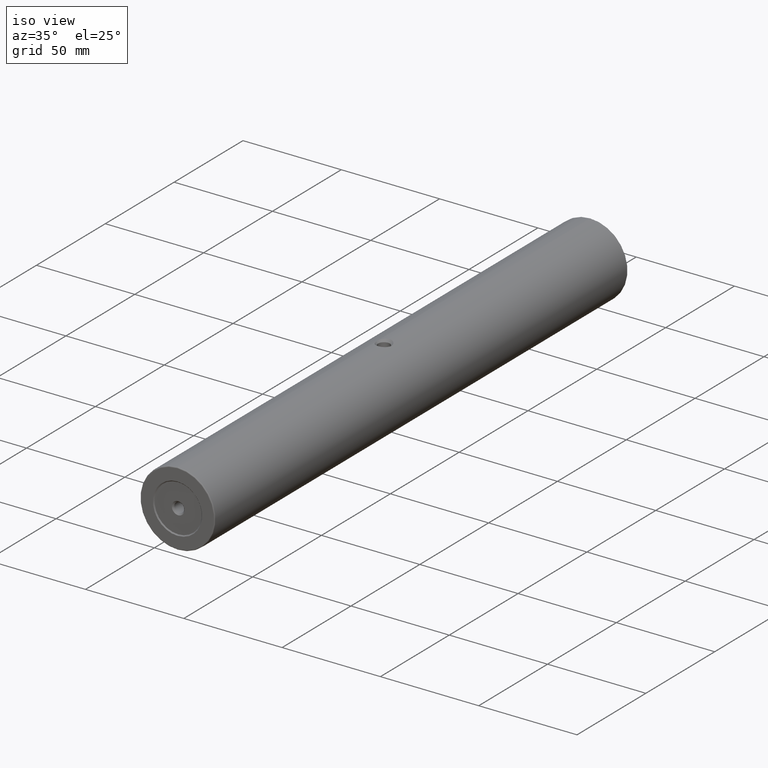
[diagram: clean part render]
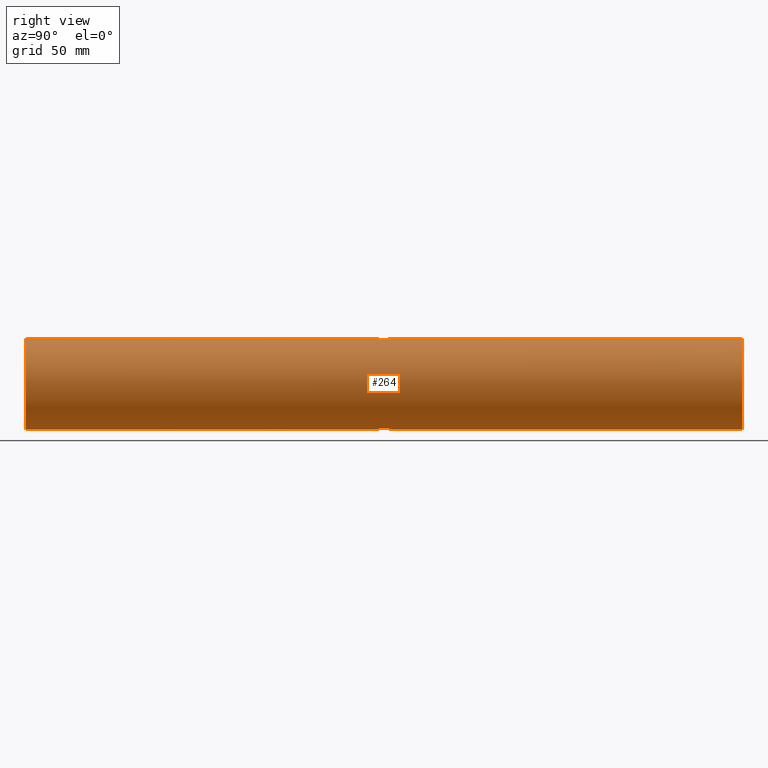
[diagram: tour spotlight — one face highlighted and labeled with its STEP entity id]
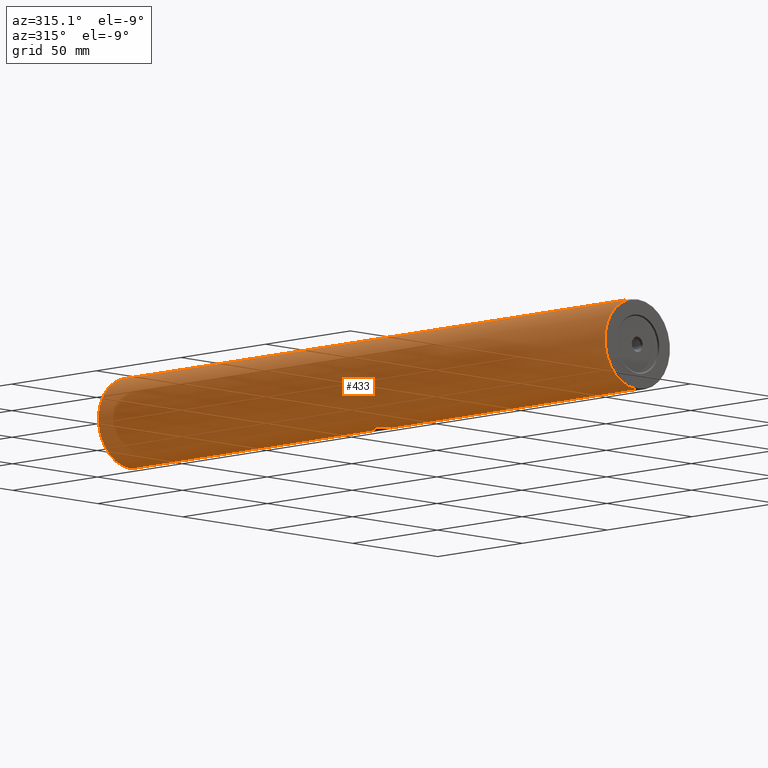
[diagram: tour spotlight — one face highlighted and labeled with its STEP entity id]
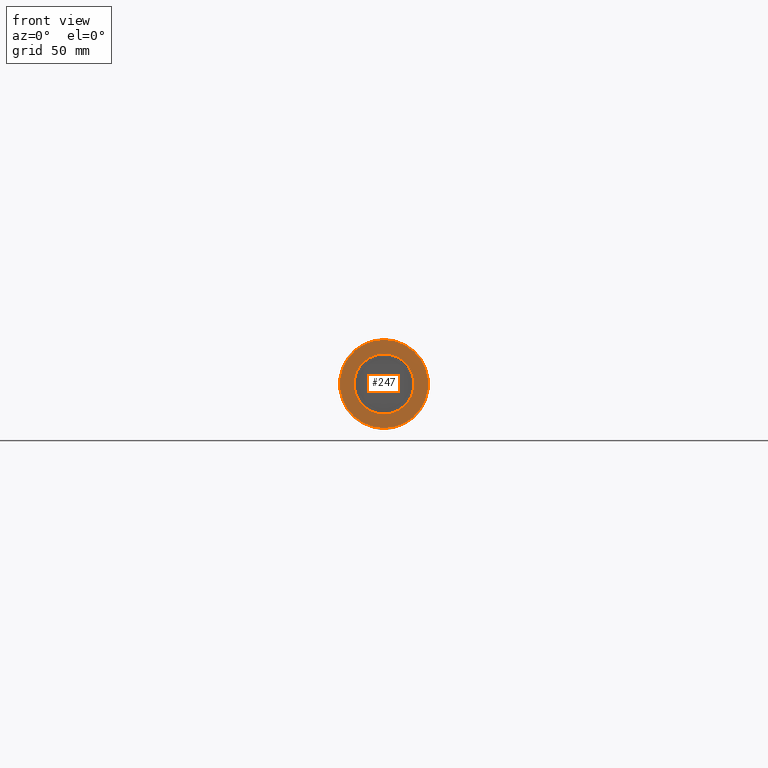
[diagram: tour spotlight — one face highlighted and labeled with its STEP entity id]
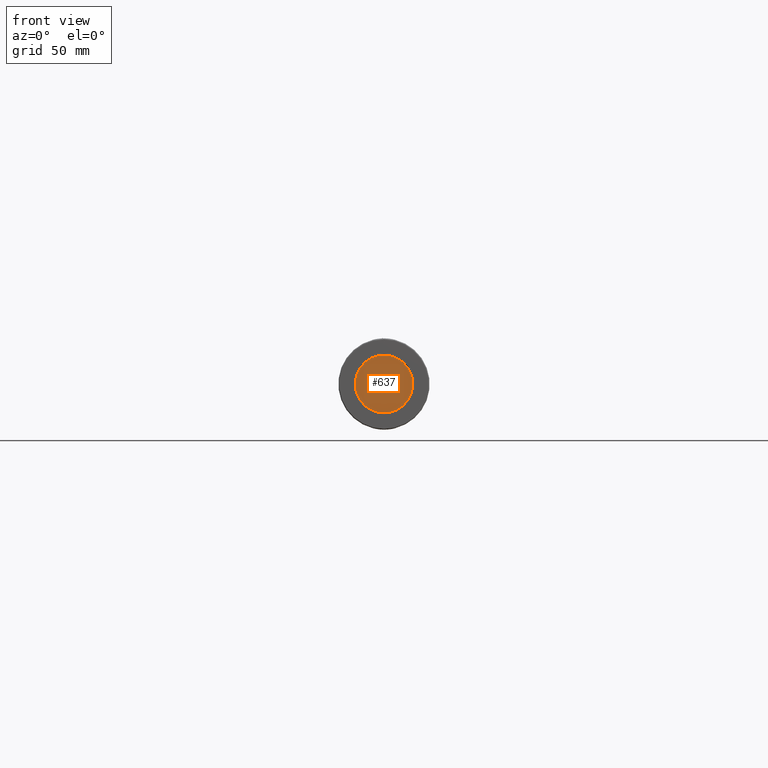
[diagram: tour spotlight — one face highlighted and labeled with its STEP entity id]
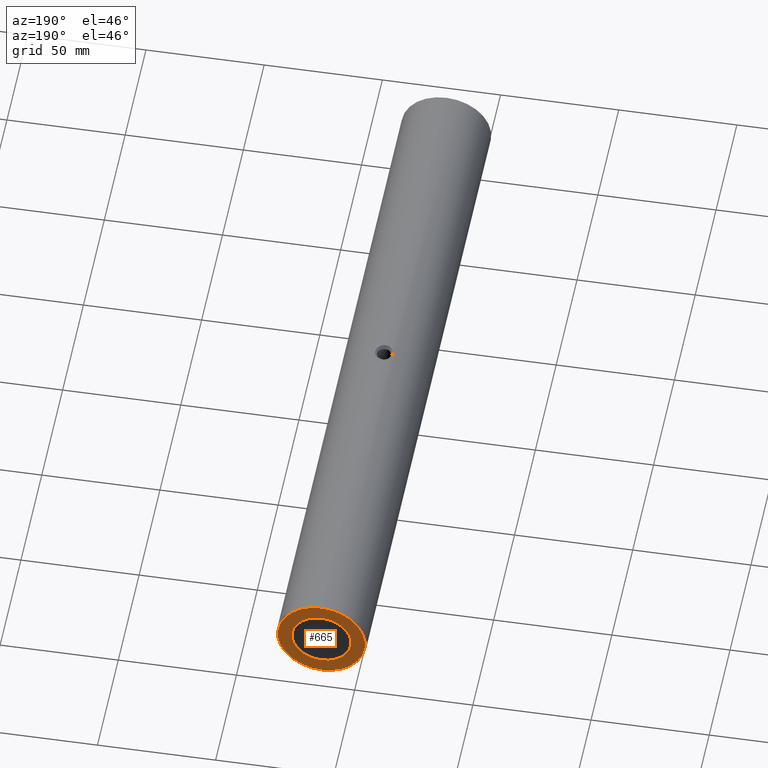
[diagram: tour spotlight — one face highlighted and labeled with its STEP entity id]
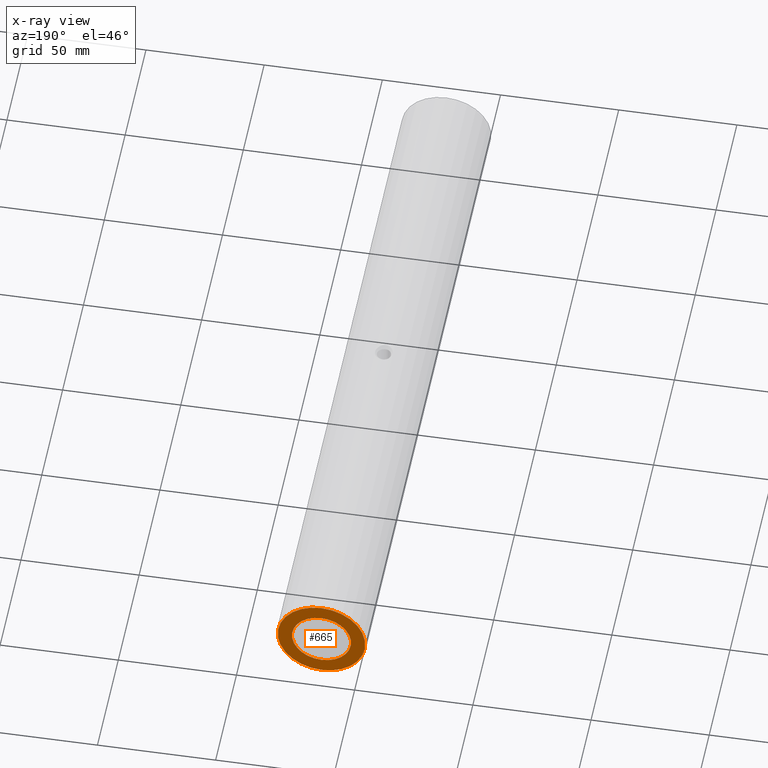
[diagram: x-ray of the same camera — body ghosted, this tour face saturated]
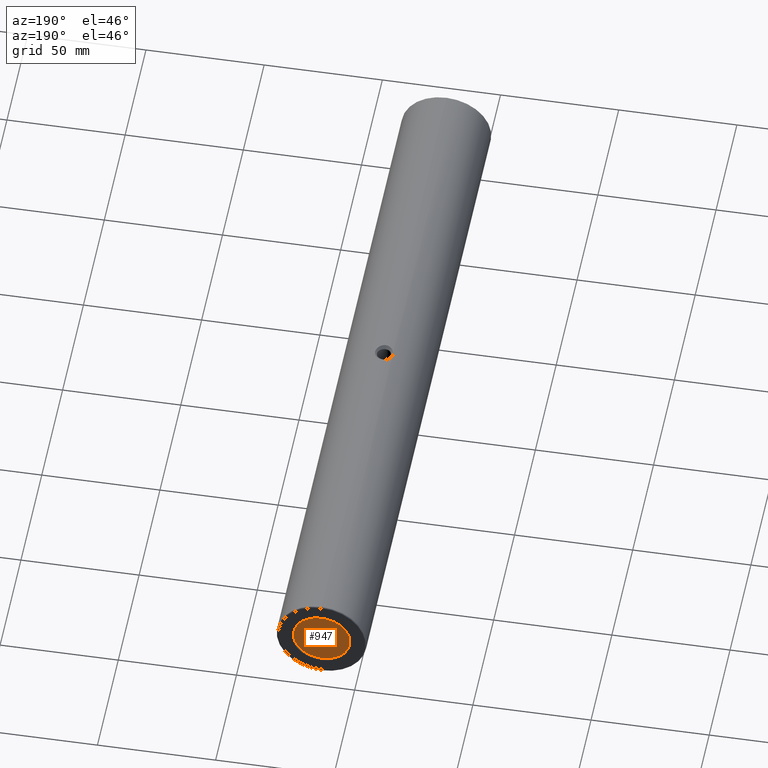
[diagram: tour spotlight — one face highlighted and labeled with its STEP entity id]
A machine part: a face-by-face anatomy tour. The part has 28 B-rep faces; the first image is the clean iso view, then the 6 largest visible faces are spotlighted one at a time (largest first), each with its STEP entity span.

Face 1 — right view, entity #264. In plain terms, the highlighted cylindrical surface (partial cylindrical patch) has radius 19 mm, axis along (-0, -1, -0).
Definition (entity closure, byte-faithful):
#1 = CARTESIAN_POINT ( 'NONE',  ( -82.83102515499484753, -0.9863390833895698817, 418.8494842750069438 ) ) ;
#3 = ORIENTED_EDGE ( 'NONE', *, *, #276, .T. ) ;
#11 = VERTEX_POINT ( 'NONE', #649 ) ;
#15 = CARTESIAN_POINT ( 'NONE',  ( -85.22679983354142053, 145.2386600083257235, 381.0000000000000000 ) ) ;
#42 = CARTESIAN_POINT ( 'NONE',  ( -81.52508446630257311, -5.300719478809650553, 381.3640301049963455 ) ) ;
#44 = CARTESIAN_POINT ( 'NONE',  ( -81.88059113652985843, -6.288202399889226690, 418.7034922552546163 ) ) ;
#51 = DIRECTION ( 'NONE',  ( 0.0000000000000000000, 0.0000000000000000000, 1.000000000000000000 ) ) ;
#68 = CARTESIAN_POINT ( 'NONE',  ( -84.18753268678747759, -0.2111030241652349926, 418.9732691674435046 ) ) ;
#82 = VERTEX_POINT ( 'NONE', #280 ) ;
#89 = CARTESIAN_POINT ( 'NONE',  ( -85.22679983354142053, -0.06133999167429866894, 381.0000000000000000 ) ) ;
#94 = DIRECTION ( 'NONE',  ( -0.0000000000000000000, -1.000000000000000000, -0.0000000000000000000 ) ) ;
#97 = CARTESIAN_POINT ( 'NONE',  ( -84.18753268678749180, -0.2111030241652349648, 381.0267308325566091 ) ) ;
#101 = ORIENTED_EDGE ( 'NONE', *, *, #696, .T. ) ;
#102 = AXIS2_PLACEMENT_3D ( 'NONE', #757, #584, #740 ) ;
#131 = CARTESIAN_POINT ( 'NONE',  ( -83.93808702169893365, -8.222923423920713404, 381.0422776972831116 ) ) ;
#144 = CARTESIAN_POINT ( 'NONE',  ( -81.41341497436532393, -3.997586484548957486, 418.6133848591761648 ) ) ;
#155 = ORIENTED_EDGE ( 'NONE', *, *, #847, .F. ) ;
#157 = CARTESIAN_POINT ( 'NONE',  ( -81.41341497436532393, -4.261339991674279126, 418.6133848591761648 ) ) ;
#161 = EDGE_CURVE ( 'NONE', #721, #796, #699, .T. ) ;
#167 = VECTOR ( 'NONE', #620, 1000.000000000000000 ) ;
#173 = ORIENTED_EDGE ( 'NONE', *, *, #555, .F. ) ;
#176 = LINE ( 'NONE', #595, #294 ) ;
#196 = B_SPLINE_CURVE_WITH_KNOTS ( 'NONE', 3,
 ( #398, #705, #380, #687, #300, #614, #725, #408, #425, #635, #569, #495, #794, #656, #97, #887, #501, #573 ),
 .UNSPECIFIED., .F., .F.,
 ( 4, 2, 2, 2, 2, 2, 2, 2, 4 ),
 ( 0.01002925114519557549, 0.01081737704504791807, 0.01160550294490026065, 0.01239362884475260496, 0.01318175474460494753, 0.01396988064445729011, 0.01475800654430963268, 0.01554613244416197526, 0.01633425834401431784 ),
 .UNSPECIFIED. ) ;
#200 = CARTESIAN_POINT ( 'NONE',  ( -81.43586367851925445, -4.785232307264686291, 381.3819744963091694 ) ) ;
#201 = CARTESIAN_POINT ( 'NONE',  ( -82.29671814351611658, -6.957786961682561611, 418.7735023986901979 ) ) ;
#212 = CARTESIAN_POINT ( 'NONE',  ( -81.88059113652985843, -6.288202399889226690, 381.2965077447454973 ) ) ;
#220 = CARTESIAN_POINT ( 'NONE',  ( -83.24438980785724596, -7.856924346119599889, 381.1025380199827737 ) ) ;
#221 = CARTESIAN_POINT ( 'NONE',  ( -81.59285872774556481, -5.558021363143371474, 418.6494685149854149 ) ) ;
#243 = VERTEX_POINT ( 'NONE', #849 ) ;
#253 = VECTOR ( 'NONE', #94, 1000.000000000000000 ) ;
#254 = CARTESIAN_POINT ( 'NONE',  ( -85.22679983354142053, 145.7386600083257235, 419.0000000000000568 ) ) ;
#264 = ADVANCED_FACE ( 'NONE', ( #938 ), #540, .T. ) ;
#265 = LINE ( 'NONE', #254, #253 ) ;
#274 = CARTESIAN_POINT ( 'NONE',  ( -81.88335953815429491, -2.229144387579318209, 418.7039841074685000 ) ) ;
#276 = EDGE_CURVE ( 'NONE', #330, #804, #558, .T. ) ;
#279 = CARTESIAN_POINT ( 'NONE',  ( -82.82757549099136440, -7.533607839044134558, 418.8490779973516851 ) ) ;
#280 = CARTESIAN_POINT ( 'NONE',  ( -85.22679983354142053, -153.7613399916742765, 419.0000000000000568 ) ) ;
#286 = CARTESIAN_POINT ( 'NONE',  ( -81.43639937781144056, -3.732814026306843225, 418.6181352063767918 ) ) ;
#289 = CARTESIAN_POINT ( 'NONE',  ( -84.69972560880194123, -8.430702186240790041, 381.0055983805024198 ) ) ;
#291 = CARTESIAN_POINT ( 'NONE',  ( -83.24438980785724596, -7.856924346119599889, 418.8974619800173400 ) ) ;
#294 = VECTOR ( 'NONE', #915, 1000.000000000000000 ) ;
#295 = CARTESIAN_POINT ( 'NONE',  ( -81.77082803723338600, -6.051458313143355028, 381.3167330802414767 ) ) ;
#300 = CARTESIAN_POINT ( 'NONE',  ( -81.59279953389886941, -2.964568543362572584, 381.3505402671659681 ) ) ;
#301 = CIRCLE ( 'NONE', #386, 19.00000000000001776 ) ;
#307 = CARTESIAN_POINT ( 'NONE',  ( -85.22679983354142053, -0.06133999167429866894, 419.0000000000000568 ) ) ;
#310 = EDGE_CURVE ( 'NONE', #11, #82, #265, .T. ) ;
#314 = VERTEX_POINT ( 'NONE', #888 ) ;
#330 = VERTEX_POINT ( 'NONE', #580 ) ;
#333 = CIRCLE ( 'NONE', #102, 19.00000000000001776 ) ;
#358 = CARTESIAN_POINT ( 'NONE',  ( -84.96243902164792416, -8.461339991674275751, 419.0000000000001137 ) ) ;
#363 = CARTESIAN_POINT ( 'NONE',  ( -82.63814515825626472, -7.352595677616392322, 381.1763808475635642 ) ) ;
#364 = CARTESIAN_POINT ( 'NONE',  ( -85.22679983354142053, -153.7613399916742765, 400.0000000000000000 ) ) ;
#369 = CARTESIAN_POINT ( 'NONE',  ( -84.96243902164792416, -8.461339991674275751, 381.0000000000000568 ) ) ;
#371 = CARTESIAN_POINT ( 'NONE',  ( -81.41341497436532393, -4.524701080299160516, 418.6133848591761648 ) ) ;
#380 = CARTESIAN_POINT ( 'NONE',  ( -81.43639937781146898, -3.732814026306841892, 381.3818647936232082 ) ) ;
#386 = AXIS2_PLACEMENT_3D ( 'NONE', #364, #459, #51 ) ;
#395 = ORIENTED_EDGE ( 'NONE', *, *, #508, .F. ) ;
#398 = CARTESIAN_POINT ( 'NONE',  ( -81.41341497436532393, -4.261339991674277350, 381.3866151408238920 ) ) ;
#399 = CARTESIAN_POINT ( 'NONE',  ( -85.22679983354142053, 145.7386600083257235, 381.0000000000000000 ) ) ;
#401 = CARTESIAN_POINT ( 'NONE',  ( -83.94119362236200743, -0.2983445582111095007, 418.9579599544148323 ) ) ;
#408 = CARTESIAN_POINT ( 'NONE',  ( -82.14497683168241338, -1.778754477084883101, 381.2511338613114162 ) ) ;
#425 = CARTESIAN_POINT ( 'NONE',  ( -82.29571650229409840, -1.565921010254241796, 381.2266365370629160 ) ) ;
#432 = ORIENTED_EDGE ( 'NONE', *, *, #310, .T. ) ;
#434 = CARTESIAN_POINT ( 'NONE',  ( -82.29671814351611658, -6.957786961682561611, 381.2264976013096884 ) ) ;
#439 = VECTOR ( 'NONE', #787, 1000.000000000000000 ) ;
#443 = CARTESIAN_POINT ( 'NONE',  ( -82.14309753980985818, -6.741247472261910012, 381.2514396459365571 ) ) ;
#446 = EDGE_CURVE ( 'NONE', #82, #243, #301, .T. ) ;
#449 = CARTESIAN_POINT ( 'NONE',  ( -81.41341497436532393, -4.524701080299158740, 381.3866151408239489 ) ) ;
#450 = CARTESIAN_POINT ( 'NONE',  ( -82.14309753980985818, -6.741247472261910012, 418.7485603540634429 ) ) ;
#459 = DIRECTION ( 'NONE',  ( 0.0000000000000000000, 1.000000000000000000, 0.0000000000000000000 ) ) ;
#472 = CARTESIAN_POINT ( 'NONE',  ( -81.41341497436532393, -4.261339991674277350, 381.3866151408238920 ) ) ;
#479 = CARTESIAN_POINT ( 'NONE',  ( -85.22679983354142053, 145.7386600083257235, 400.0000000000000000 ) ) ;
#480 = EDGE_CURVE ( 'NONE', #721, #330, #333, .T. ) ;
#482 = CARTESIAN_POINT ( 'NONE',  ( -83.24199987212080032, -0.6676668308104377614, 418.8971787009924697 ) ) ;
#486 = CARTESIAN_POINT ( 'NONE',  ( -85.22679983354142053, 145.7386600083257235, 419.0000000000000568 ) ) ;
#493 = ORIENTED_EDGE ( 'NONE', *, *, #859, .T. ) ;
#495 = CARTESIAN_POINT ( 'NONE',  ( -83.24199987212081453, -0.6676668308104372063, 381.1028212990075872 ) ) ;
#501 = CARTESIAN_POINT ( 'NONE',  ( -84.96393248785444996, -0.06133999167429707300, 381.0000000000000000 ) ) ;
#508 = EDGE_CURVE ( 'NONE', #11, #611, #819, .T. ) ;
#522 = CARTESIAN_POINT ( 'NONE',  ( -84.69972560880194123, -8.430702186240790041, 418.9944016194976939 ) ) ;
#539 = CARTESIAN_POINT ( 'NONE',  ( -83.46511704992533964, -0.5280370949836369343, 418.9196591600729107 ) ) ;
#540 = CYLINDRICAL_SURFACE ( 'NONE', #737, 19.00000000000001776 ) ;
#555 = EDGE_CURVE ( 'NONE', #611, #804, #1004, .T. ) ;
#558 = LINE ( 'NONE', #486, #439 ) ;
#569 = CARTESIAN_POINT ( 'NONE',  ( -82.83102515499486174, -0.9863390833895689935, 381.1505157249931699 ) ) ;
#572 = VERTEX_POINT ( 'NONE', #472 ) ;
#573 = CARTESIAN_POINT ( 'NONE',  ( -85.22679983354142053, -0.06133999167429866894, 381.0000000000000000 ) ) ;
#580 = CARTESIAN_POINT ( 'NONE',  ( -85.22679983354142053, 145.2386600083257235, 419.0000000000000568 ) ) ;
#584 = DIRECTION ( 'NONE',  ( -0.0000000000000000000, -1.000000000000000000, -0.0000000000000000000 ) ) ;
#595 = CARTESIAN_POINT ( 'NONE',  ( -85.22679983354142053, 145.7386600083257235, 381.0000000000000000 ) ) ;
#596 = CARTESIAN_POINT ( 'NONE',  ( -84.18986350246656514, -8.312315706571794749, 418.9733988301109093 ) ) ;
#602 = CARTESIAN_POINT ( 'NONE',  ( -81.41341497436532393, -4.261339991674277350, 381.3866151408238920 ) ) ;
#603 = CARTESIAN_POINT ( 'NONE',  ( -82.63814515825626472, -7.352595677616392322, 418.8236191524364926 ) ) ;
#611 = VERTEX_POINT ( 'NONE', #157 ) ;
#614 = CARTESIAN_POINT ( 'NONE',  ( -81.77187972696631846, -2.468561370532884602, 381.3165358254529451 ) ) ;
#620 = DIRECTION ( 'NONE',  ( -0.0000000000000000000, -1.000000000000000000, -0.0000000000000000000 ) ) ;
#635 = CARTESIAN_POINT ( 'NONE',  ( -82.64087668775829343, -1.167056617506569971, 381.1759880288403792 ) ) ;
#649 = CARTESIAN_POINT ( 'NONE',  ( -85.22679983354142053, -8.461339991674268646, 419.0000000000000568 ) ) ;
#656 = CARTESIAN_POINT ( 'NONE',  ( -83.94119362236200743, -0.2983445582111096117, 381.0420400455853382 ) ) ;
#662 = CARTESIAN_POINT ( 'NONE',  ( -85.22679983354142053, -8.461339991674268646, 381.0000000000000000 ) ) ;
#663 = CARTESIAN_POINT ( 'NONE',  ( -81.52612773688036896, -3.217498801581725854, 418.6361777253471814 ) ) ;
#674 = CARTESIAN_POINT ( 'NONE',  ( -81.77082803723338600, -6.051458313143361245, 418.6832669197586370 ) ) ;
#681 = CARTESIAN_POINT ( 'NONE',  ( -84.18986350246656514, -8.312315706571794749, 381.0266011698889201 ) ) ;
#683 = CARTESIAN_POINT ( 'NONE',  ( -83.46626106639050136, -7.995107640163255702, 418.9197388689088370 ) ) ;
#686 = EDGE_LOOP ( 'NONE', ( #944, #3, #173, #395, #432, #860, #155, #493, #101, #896 ) ) ;
#687 = CARTESIAN_POINT ( 'NONE',  ( -81.52612773688034054, -3.217498801581724077, 381.3638222746528754 ) ) ;
#696 = EDGE_CURVE ( 'NONE', #572, #796, #196, .T. ) ;
#699 = LINE ( 'NONE', #399, #167 ) ;
#705 = CARTESIAN_POINT ( 'NONE',  ( -81.41341497436533814, -3.997586484548954822, 381.3866151408237783 ) ) ;
#721 = VERTEX_POINT ( 'NONE', #15 ) ;
#725 = CARTESIAN_POINT ( 'NONE',  ( -81.88335953815429491, -2.229144387579305775, 381.2960158925316705 ) ) ;
#737 = AXIS2_PLACEMENT_3D ( 'NONE', #479, #1005, #776 ) ;
#740 = DIRECTION ( 'NONE',  ( 0.0000000000000000000, 0.0000000000000000000, 1.000000000000000000 ) ) ;
#745 = CARTESIAN_POINT ( 'NONE',  ( -82.14497683168238495, -1.778754477084894647, 418.7488661386886406 ) ) ;
#757 = CARTESIAN_POINT ( 'NONE',  ( -85.22679983354142053, 145.2386600083257235, 400.0000000000000000 ) ) ;
#761 = CARTESIAN_POINT ( 'NONE',  ( -81.43586367851925445, -4.785232307264688068, 418.6180255036908306 ) ) ;
#776 = DIRECTION ( 'NONE',  ( 0.0000000000000000000, 0.0000000000000000000, -1.000000000000000000 ) ) ;
#778 = B_SPLINE_CURVE_WITH_KNOTS ( 'NONE', 3,
 ( #662, #369, #289, #681, #131, #991, #220, #827, #363, #434, #443, #212, #295, #979, #42, #200, #449, #602 ),
 .UNSPECIFIED., .F., .F.,
 ( 4, 2, 2, 2, 2, 2, 2, 2, 4 ),
 ( 0.003733624680294762854, 0.004520577988407363350, 0.005307531296519963845, 0.006094484604632565208, 0.006881437912745166571, 0.007668391220857769669, 0.008455344528970371032, 0.009242297837082972395, 0.01002925114519557549 ),
 .UNSPECIFIED. ) ;
#787 = DIRECTION ( 'NONE',  ( -0.0000000000000000000, -1.000000000000000000, -0.0000000000000000000 ) ) ;
#794 = CARTESIAN_POINT ( 'NONE',  ( -83.46511704992532543, -0.5280370949836370453, 381.0803408399271461 ) ) ;
#796 = VERTEX_POINT ( 'NONE', #89 ) ;
#804 = VERTEX_POINT ( 'NONE', #949 ) ;
#819 = B_SPLINE_CURVE_WITH_KNOTS ( 'NONE', 3,
 ( #828, #358, #522, #596, #905, #683, #291, #279, #603, #201, #450, #44, #674, #221, #981, #761, #371, #993 ),
 .UNSPECIFIED., .F., .F.,
 ( 4, 2, 2, 2, 2, 2, 2, 2, 4 ),
 ( 0.003733624680294762854, 0.004520577988407363350, 0.005307531296519963845, 0.006094484604632564341, 0.006881437912745166571, 0.007668391220857767934, 0.008455344528970369297, 0.009242297837082972395, 0.01002925114519557376 ),
 .UNSPECIFIED. ) ;
#824 = CARTESIAN_POINT ( 'NONE',  ( -81.77187972696634688, -2.468561370532886379, 418.6834641745472823 ) ) ;
#827 = CARTESIAN_POINT ( 'NONE',  ( -82.82757549099136440, -7.533607839044134558, 381.1509220026484286 ) ) ;
#828 = CARTESIAN_POINT ( 'NONE',  ( -85.22679983354142053, -8.461339991674268646, 419.0000000000000568 ) ) ;
#847 = EDGE_CURVE ( 'NONE', #314, #243, #176, .T. ) ;
#849 = CARTESIAN_POINT ( 'NONE',  ( -85.22679983354142053, -153.7613399916742765, 381.0000000000000000 ) ) ;
#854 = CARTESIAN_POINT ( 'NONE',  ( -84.69707466841043697, -0.09239770115273915341, 418.9943257409157127 ) ) ;
#859 = EDGE_CURVE ( 'NONE', #314, #572, #778, .T. ) ;
#860 = ORIENTED_EDGE ( 'NONE', *, *, #446, .T. ) ;
#887 = CARTESIAN_POINT ( 'NONE',  ( -84.69707466841040855, -0.09239770115273913953, 381.0056742590844578 ) ) ;
#888 = CARTESIAN_POINT ( 'NONE',  ( -85.22679983354142053, -8.461339991674268646, 381.0000000000000000 ) ) ;
#896 = ORIENTED_EDGE ( 'NONE', *, *, #161, .F. ) ;
#905 = CARTESIAN_POINT ( 'NONE',  ( -83.93808702169893365, -8.222923423920713404, 418.9577223027167747 ) ) ;
#915 = DIRECTION ( 'NONE',  ( -0.0000000000000000000, -1.000000000000000000, -0.0000000000000000000 ) ) ;
#916 = CARTESIAN_POINT ( 'NONE',  ( -81.41341497436532393, -4.261339991674279126, 418.6133848591761648 ) ) ;
#928 = CARTESIAN_POINT ( 'NONE',  ( -82.64087668775827922, -1.167056617506570415, 418.8240119711596208 ) ) ;
#938 = FACE_OUTER_BOUND ( 'NONE', #686, .T. ) ;
#944 = ORIENTED_EDGE ( 'NONE', *, *, #480, .T. ) ;
#949 = CARTESIAN_POINT ( 'NONE',  ( -85.22679983354142053, -0.06133999167429866894, 419.0000000000000568 ) ) ;
#971 = CARTESIAN_POINT ( 'NONE',  ( -81.59279953389886941, -2.964568543362574360, 418.6494597328340888 ) ) ;
#979 = CARTESIAN_POINT ( 'NONE',  ( -81.59285872774556481, -5.558021363143366145, 381.3505314850146988 ) ) ;
#981 = CARTESIAN_POINT ( 'NONE',  ( -81.52508446630257311, -5.300719478809653218, 418.6359698950037682 ) ) ;
#991 = CARTESIAN_POINT ( 'NONE',  ( -83.46626106639050136, -7.995107640163255702, 381.0802611310913903 ) ) ;
#993 = CARTESIAN_POINT ( 'NONE',  ( -81.41341497436532393, -4.261339991674279126, 418.6133848591761648 ) ) ;
#997 = CARTESIAN_POINT ( 'NONE',  ( -82.29571650229409840, -1.565921010254242685, 418.7733634629371409 ) ) ;
#1003 = CARTESIAN_POINT ( 'NONE',  ( -84.96393248785446417, -0.06133999167429705912, 419.0000000000001705 ) ) ;
#1004 = B_SPLINE_CURVE_WITH_KNOTS ( 'NONE', 3,
 ( #916, #144, #286, #663, #971, #824, #274, #745, #997, #928, #1, #482, #539, #401, #68, #854, #1003, #307 ),
 .UNSPECIFIED., .F., .F.,
 ( 4, 2, 2, 2, 2, 2, 2, 2, 4 ),
 ( 0.01002925114519557376, 0.01081737704504791807, 0.01160550294490026065, 0.01239362884475260496, 0.01318175474460494753, 0.01396988064445729011, 0.01475800654430963268, 0.01554613244416197526, 0.01633425834401431784 ),
 .UNSPECIFIED. ) ;
#1005 = DIRECTION ( 'NONE',  ( -0.0000000000000000000, -1.000000000000000000, -0.0000000000000000000 ) ) ;

Face 2 — auxiliary view, entity #433. In plain terms, the highlighted cylindrical surface (partial cylindrical patch) has radius 19 mm, axis along (-0, -1, -0).
Definition (entity closure, byte-faithful):
#5 = DIRECTION ( 'NONE',  ( 0.0000000000000000000, 0.0000000000000000000, 1.000000000000000000 ) ) ;
#11 = VERTEX_POINT ( 'NONE', #649 ) ;
#15 = CARTESIAN_POINT ( 'NONE',  ( -85.22679983354142053, 145.2386600083257235, 381.0000000000000000 ) ) ;
#17 = CARTESIAN_POINT ( 'NONE',  ( -89.04018469271751712, -3.999029654920558841, 381.3866151408238920 ) ) ;
#35 = ORIENTED_EDGE ( 'NONE', *, *, #115, .F. ) ;
#39 = CARTESIAN_POINT ( 'NONE',  ( -87.21008987037792792, -0.6665384523181927534, 418.8973495991008917 ) ) ;
#53 = CARTESIAN_POINT ( 'NONE',  ( -86.26127162816044347, -8.313090059122508535, 418.9735347910690848 ) ) ;
#57 = CARTESIAN_POINT ( 'NONE',  ( -88.68189959692058721, -6.053472744008438156, 381.3165713769054150 ) ) ;
#62 = DIRECTION ( 'NONE',  ( 0.0000000000000000000, 0.0000000000000000000, -1.000000000000000000 ) ) ;
#65 = EDGE_CURVE ( 'NONE', #748, #314, #392, .T. ) ;
#72 = AXIS2_PLACEMENT_3D ( 'NONE', #296, #133, #62 ) ;
#81 = CARTESIAN_POINT ( 'NONE',  ( -85.22679983354142053, -8.461339991674268646, 419.0000000000000568 ) ) ;
#82 = VERTEX_POINT ( 'NONE', #280 ) ;
#83 = EDGE_CURVE ( 'NONE', #804, #617, #600, .T. ) ;
#89 = CARTESIAN_POINT ( 'NONE',  ( -85.22679983354142053, -0.06133999167429866894, 381.0000000000000000 ) ) ;
#94 = DIRECTION ( 'NONE',  ( -0.0000000000000000000, -1.000000000000000000, -0.0000000000000000000 ) ) ;
#109 = CARTESIAN_POINT ( 'NONE',  ( -87.62330431072487613, -0.9868626275845048257, 381.1505960961178516 ) ) ;
#115 = EDGE_CURVE ( 'NONE', #617, #11, #912, .T. ) ;
#116 = CARTESIAN_POINT ( 'NONE',  ( -88.30889371447072733, -1.779107847670829301, 381.2511769563365078 ) ) ;
#123 = CARTESIAN_POINT ( 'NONE',  ( -87.61973751830021229, -7.539048035020909921, 381.1501346175546701 ) ) ;
#124 = CIRCLE ( 'NONE', #823, 19.00000000000001776 ) ;
#133 = DIRECTION ( 'NONE',  ( -0.0000000000000000000, -1.000000000000000000, -0.0000000000000000000 ) ) ;
#134 = CARTESIAN_POINT ( 'NONE',  ( -87.20501299645449933, -7.859601616013272007, 418.8978900510489325 ) ) ;
#140 = CARTESIAN_POINT ( 'NONE',  ( -88.30889371447072733, -1.779107847670829301, 418.7488230436633785 ) ) ;
#161 = EDGE_CURVE ( 'NONE', #721, #796, #699, .T. ) ;
#167 = VECTOR ( 'NONE', #620, 1000.000000000000000 ) ;
#176 = LINE ( 'NONE', #595, #294 ) ;
#181 = ORIENTED_EDGE ( 'NONE', *, *, #290, .T. ) ;
#190 = CARTESIAN_POINT ( 'NONE',  ( -85.22679983354142053, -0.06133999167429866894, 381.0000000000000000 ) ) ;
#195 = CARTESIAN_POINT ( 'NONE',  ( -86.98394057735728779, -0.5256534841595331686, 381.0799482386107115 ) ) ;
#209 = CARTESIAN_POINT ( 'NONE',  ( -85.75119431850812646, -8.431120250548380213, 381.0055227819794936 ) ) ;
#211 = ORIENTED_EDGE ( 'NONE', *, *, #784, .T. ) ;
#214 = CARTESIAN_POINT ( 'NONE',  ( -88.15440500365676257, -6.961092752758728963, 418.7738934117829217 ) ) ;
#218 = CARTESIAN_POINT ( 'NONE',  ( -89.01782207825233684, -4.784939022142112641, 381.3819915527722060 ) ) ;
#224 = ORIENTED_EDGE ( 'NONE', *, *, #161, .T. ) ;
#232 = DIRECTION ( 'NONE',  ( -0.0000000000000000000, -1.000000000000000000, -0.0000000000000000000 ) ) ;
#243 = VERTEX_POINT ( 'NONE', #849 ) ;
#244 = CARTESIAN_POINT ( 'NONE',  ( -89.04018469271751712, -4.261339991674283567, 418.6133848591761648 ) ) ;
#248 = EDGE_LOOP ( 'NONE', ( #546, #181, #224, #601, #418, #484, #211, #260, #35, #448 ) ) ;
#249 = DIRECTION ( 'NONE',  ( 0.0000000000000000000, 0.0000000000000000000, 1.000000000000000000 ) ) ;
#253 = VECTOR ( 'NONE', #94, 1000.000000000000000 ) ;
#254 = CARTESIAN_POINT ( 'NONE',  ( -85.22679983354142053, 145.7386600083257235, 419.0000000000000568 ) ) ;
#260 = ORIENTED_EDGE ( 'NONE', *, *, #310, .F. ) ;
#261 = CIRCLE ( 'NONE', #877, 19.00000000000001776 ) ;
#263 = DIRECTION ( 'NONE',  ( 0.0000000000000000000, 1.000000000000000000, 0.0000000000000000000 ) ) ;
#265 = LINE ( 'NONE', #254, #253 ) ;
#270 = CARTESIAN_POINT ( 'NONE',  ( -86.51258600344370109, -0.2986253842693811777, 381.0420819662991789 ) ) ;
#276 = EDGE_CURVE ( 'NONE', #330, #804, #558, .T. ) ;
#280 = CARTESIAN_POINT ( 'NONE',  ( -85.22679983354142053, -153.7613399916742765, 419.0000000000000568 ) ) ;
#290 = EDGE_CURVE ( 'NONE', #330, #721, #124, .T. ) ;
#292 = CARTESIAN_POINT ( 'NONE',  ( -85.22679983354142053, -0.06133999167429866894, 419.0000000000000568 ) ) ;
#294 = VECTOR ( 'NONE', #915, 1000.000000000000000 ) ;
#296 = CARTESIAN_POINT ( 'NONE',  ( -85.22679983354142053, 145.7386600083257235, 400.0000000000000000 ) ) ;
#297 = CARTESIAN_POINT ( 'NONE',  ( -88.57188684336087192, -6.290580469037319489, 381.2963019886966549 ) ) ;
#302 = CARTESIAN_POINT ( 'NONE',  ( -88.57188684336087192, -6.290580469037319489, 418.7036980113034588 ) ) ;
#310 = EDGE_CURVE ( 'NONE', #11, #82, #265, .T. ) ;
#314 = VERTEX_POINT ( 'NONE', #888 ) ;
#328 = CARTESIAN_POINT ( 'NONE',  ( -88.15730954550808462, -1.565196067254975176, 381.2265485059697880 ) ) ;
#330 = VERTEX_POINT ( 'NONE', #580 ) ;
#345 = CARTESIAN_POINT ( 'NONE',  ( -86.26440072079715549, -0.2103516366053766184, 381.0266000980727767 ) ) ;
#353 = CARTESIAN_POINT ( 'NONE',  ( -89.04018469271751712, -4.261339991674283567, 381.3866151408238920 ) ) ;
#356 = EDGE_CURVE ( 'NONE', #796, #748, #1011, .T. ) ;
#360 = CARTESIAN_POINT ( 'NONE',  ( -87.20501299645449933, -7.859601616013272007, 381.1021099489511244 ) ) ;
#365 = CARTESIAN_POINT ( 'NONE',  ( -85.49146371113677390, -8.461339991674272198, 381.0000000000000000 ) ) ;
#372 = CARTESIAN_POINT ( 'NONE',  ( -85.75119431850812646, -8.431120250548380213, 418.9944772180206769 ) ) ;
#377 = CARTESIAN_POINT ( 'NONE',  ( -85.48903342595741606, -0.06133999167429705912, 419.0000000000001705 ) ) ;
#392 = B_SPLINE_CURVE_WITH_KNOTS ( 'NONE', 3,
 ( #586, #716, #218, #920, #679, #57, #297, #604, #442, #531, #123, #360, #900, #535, #989, #209, #365, #460 ),
 .UNSPECIFIED., .F., .F.,
 ( 4, 2, 2, 2, 2, 2, 2, 2, 4 ),
 ( 0.02262406464777516613, 0.02341192012650424731, 0.02419977560523332849, 0.02498763108396241314, 0.02577548656269149432, 0.02656334204142057551, 0.02735119752014966016, 0.02813905299887874134, 0.02892690847760782252 ),
 .UNSPECIFIED. ) ;
#399 = CARTESIAN_POINT ( 'NONE',  ( -85.22679983354142053, 145.7386600083257235, 381.0000000000000000 ) ) ;
#406 = CARTESIAN_POINT ( 'NONE',  ( -85.22679983354142053, 145.2386600083257235, 400.0000000000000000 ) ) ;
#410 = CARTESIAN_POINT ( 'NONE',  ( -87.21008987037792792, -0.6665384523181927534, 381.1026504008992788 ) ) ;
#418 = ORIENTED_EDGE ( 'NONE', *, *, #65, .T. ) ;
#429 = CARTESIAN_POINT ( 'NONE',  ( -87.81247192360183362, -1.166828721202192165, 381.1759550570734518 ) ) ;
#433 = ADVANCED_FACE ( 'NONE', ( #731 ), #515, .T. ) ;
#435 = CARTESIAN_POINT ( 'NONE',  ( -88.92749338337961262, -3.217524007279799481, 381.3638264625174088 ) ) ;
#439 = VECTOR ( 'NONE', #787, 1000.000000000000000 ) ;
#442 = CARTESIAN_POINT ( 'NONE',  ( -88.15440500365676257, -6.961092752758728963, 381.2261065882171351 ) ) ;
#448 = ORIENTED_EDGE ( 'NONE', *, *, #83, .F. ) ;
#451 = CARTESIAN_POINT ( 'NONE',  ( -86.98410511525524669, -7.996885633606630961, 418.9200298249307366 ) ) ;
#456 = CARTESIAN_POINT ( 'NONE',  ( -89.04018469271751712, -3.999029654920558841, 418.6133848591761648 ) ) ;
#460 = CARTESIAN_POINT ( 'NONE',  ( -85.22679983354142053, -8.461339991674268646, 381.0000000000000000 ) ) ;
#484 = ORIENTED_EDGE ( 'NONE', *, *, #847, .T. ) ;
#486 = CARTESIAN_POINT ( 'NONE',  ( -85.22679983354142053, 145.7386600083257235, 419.0000000000000568 ) ) ;
#497 = CARTESIAN_POINT ( 'NONE',  ( -88.57090845425022962, -2.230408319438852871, 381.2961339358312216 ) ) ;
#506 = CARTESIAN_POINT ( 'NONE',  ( -88.86084895124396610, -2.964938769552044828, 381.3505518109733430 ) ) ;
#515 = CYLINDRICAL_SURFACE ( 'NONE', #72, 19.00000000000001776 ) ;
#517 = CARTESIAN_POINT ( 'NONE',  ( -87.81196888986544025, -7.356176429533654471, 418.8241028157862615 ) ) ;
#523 = CARTESIAN_POINT ( 'NONE',  ( -87.81247192360183362, -1.166828721202192165, 418.8240449429266050 ) ) ;
#527 = CARTESIAN_POINT ( 'NONE',  ( -89.04018469271751712, -4.261339991674283567, 418.6133848591761648 ) ) ;
#531 = CARTESIAN_POINT ( 'NONE',  ( -87.81196888986544025, -7.356176429533654471, 381.1758971842136248 ) ) ;
#535 = CARTESIAN_POINT ( 'NONE',  ( -86.51381476393198966, -8.223524199725767758, 381.0421719862650889 ) ) ;
#546 = ORIENTED_EDGE ( 'NONE', *, *, #276, .F. ) ;
#558 = LINE ( 'NONE', #486, #439 ) ;
#571 = CARTESIAN_POINT ( 'NONE',  ( -89.01727933074084831, -3.733366076984472315, 381.3818808132967320 ) ) ;
#580 = CARTESIAN_POINT ( 'NONE',  ( -85.22679983354142053, 145.2386600083257235, 419.0000000000000568 ) ) ;
#586 = CARTESIAN_POINT ( 'NONE',  ( -89.04018469271751712, -4.261339991674283567, 381.3866151408238920 ) ) ;
#591 = CARTESIAN_POINT ( 'NONE',  ( -89.01782207825233684, -4.784939022142112641, 418.6180084472278509 ) ) ;
#595 = CARTESIAN_POINT ( 'NONE',  ( -85.22679983354142053, 145.7386600083257235, 381.0000000000000000 ) ) ;
#599 = CARTESIAN_POINT ( 'NONE',  ( -88.86003986455601478, -5.560364975193093251, 418.6496055284342788 ) ) ;
#600 = B_SPLINE_CURVE_WITH_KNOTS ( 'NONE', 3,
 ( #292, #377, #917, #911, #742, #835, #39, #670, #523, #839, #140, #825, #675, #763, #906, #994, #456, #527 ),
 .UNSPECIFIED., .F., .F.,
 ( 4, 2, 2, 2, 2, 2, 2, 2, 4 ),
 ( 0.01633425834401431784, 0.01712048413198442517, 0.01790670991995452904, 0.01869293570792463638, 0.01947916149589474372, 0.02026538728386484758, 0.02105161307183495145, 0.02183783885980505879, 0.02262406464777516613 ),
 .UNSPECIFIED. ) ;
#601 = ORIENTED_EDGE ( 'NONE', *, *, #356, .T. ) ;
#604 = CARTESIAN_POINT ( 'NONE',  ( -88.30796467933343763, -6.745178320961991325, 381.2510173717518569 ) ) ;
#615 = CARTESIAN_POINT ( 'NONE',  ( -88.30796467933343763, -6.745178320961991325, 418.7489826282481999 ) ) ;
#617 = VERTEX_POINT ( 'NONE', #244 ) ;
#620 = DIRECTION ( 'NONE',  ( -0.0000000000000000000, -1.000000000000000000, -0.0000000000000000000 ) ) ;
#632 = CARTESIAN_POINT ( 'NONE',  ( -85.49146371113677390, -8.461339991674272198, 419.0000000000001705 ) ) ;
#649 = CARTESIAN_POINT ( 'NONE',  ( -85.22679983354142053, -8.461339991674268646, 419.0000000000000568 ) ) ;
#652 = CARTESIAN_POINT ( 'NONE',  ( -89.04018469271751712, -4.261339991674283567, 381.3866151408238920 ) ) ;
#670 = CARTESIAN_POINT ( 'NONE',  ( -87.62330431072487613, -0.9868626275845048257, 418.8494039038823757 ) ) ;
#675 = CARTESIAN_POINT ( 'NONE',  ( -88.68258810927235913, -2.470732174027440387, 418.6833015855973485 ) ) ;
#679 = CARTESIAN_POINT ( 'NONE',  ( -88.86003986455601478, -5.560364975193093251, 381.3503944715658349 ) ) ;
#688 = CARTESIAN_POINT ( 'NONE',  ( -89.04018469271750291, -4.524194045943173315, 418.6133848591762217 ) ) ;
#699 = LINE ( 'NONE', #399, #167 ) ;
#716 = CARTESIAN_POINT ( 'NONE',  ( -89.04018469271750291, -4.524194045943173315, 381.3866151408239489 ) ) ;
#721 = VERTEX_POINT ( 'NONE', #15 ) ;
#731 = FACE_OUTER_BOUND ( 'NONE', #248, .T. ) ;
#742 = CARTESIAN_POINT ( 'NONE',  ( -86.51258600344370109, -0.2986253842693811777, 418.9579180337008211 ) ) ;
#747 = CARTESIAN_POINT ( 'NONE',  ( -88.68189959692058721, -6.053472744008438156, 418.6834286230944713 ) ) ;
#748 = VERTEX_POINT ( 'NONE', #652 ) ;
#751 = CARTESIAN_POINT ( 'NONE',  ( -86.51381476393198966, -8.223524199725767758, 418.9578280137350816 ) ) ;
#763 = CARTESIAN_POINT ( 'NONE',  ( -88.86084895124396610, -2.964938769552044828, 418.6494481890263728 ) ) ;
#784 = EDGE_CURVE ( 'NONE', #243, #82, #261, .T. ) ;
#787 = DIRECTION ( 'NONE',  ( -0.0000000000000000000, -1.000000000000000000, -0.0000000000000000000 ) ) ;
#790 = CARTESIAN_POINT ( 'NONE',  ( -85.48903342595741606, -0.06133999167429705912, 380.9999999999999432 ) ) ;
#795 = CARTESIAN_POINT ( 'NONE',  ( -88.68258810927235913, -2.470732174027440387, 381.3166984144028220 ) ) ;
#796 = VERTEX_POINT ( 'NONE', #89 ) ;
#804 = VERTEX_POINT ( 'NONE', #949 ) ;
#818 = CARTESIAN_POINT ( 'NONE',  ( -87.61973751830021229, -7.539048035020909921, 418.8498653824453868 ) ) ;
#823 = AXIS2_PLACEMENT_3D ( 'NONE', #406, #232, #5 ) ;
#825 = CARTESIAN_POINT ( 'NONE',  ( -88.57090845425022962, -2.230408319438852871, 418.7038660641689489 ) ) ;
#835 = CARTESIAN_POINT ( 'NONE',  ( -86.98394057735728779, -0.5256534841595331686, 418.9200517613895727 ) ) ;
#839 = CARTESIAN_POINT ( 'NONE',  ( -88.15730954550808462, -1.565196067254975176, 418.7734514940302688 ) ) ;
#847 = EDGE_CURVE ( 'NONE', #314, #243, #176, .T. ) ;
#849 = CARTESIAN_POINT ( 'NONE',  ( -85.22679983354142053, -153.7613399916742765, 381.0000000000000000 ) ) ;
#877 = AXIS2_PLACEMENT_3D ( 'NONE', #960, #263, #249 ) ;
#888 = CARTESIAN_POINT ( 'NONE',  ( -85.22679983354142053, -8.461339991674268646, 381.0000000000000000 ) ) ;
#900 = CARTESIAN_POINT ( 'NONE',  ( -86.98410511525524669, -7.996885633606630961, 381.0799701750693771 ) ) ;
#906 = CARTESIAN_POINT ( 'NONE',  ( -88.92749338337961262, -3.217524007279799481, 418.6361735374826480 ) ) ;
#911 = CARTESIAN_POINT ( 'NONE',  ( -86.26440072079715549, -0.2103516366053766184, 418.9733999019272801 ) ) ;
#912 = B_SPLINE_CURVE_WITH_KNOTS ( 'NONE', 3,
 ( #977, #688, #591, #998, #599, #747, #302, #615, #214, #517, #818, #134, #451, #751, #53, #372, #632, #81 ),
 .UNSPECIFIED., .F., .F.,
 ( 4, 2, 2, 2, 2, 2, 2, 2, 4 ),
 ( 0.02262406464777516613, 0.02341192012650424731, 0.02419977560523332849, 0.02498763108396241314, 0.02577548656269149432, 0.02656334204142057551, 0.02735119752014966016, 0.02813905299887874134, 0.02892690847760782252 ),
 .UNSPECIFIED. ) ;
#915 = DIRECTION ( 'NONE',  ( -0.0000000000000000000, -1.000000000000000000, -0.0000000000000000000 ) ) ;
#917 = CARTESIAN_POINT ( 'NONE',  ( -85.74900820764774778, -0.09101629208817690886, 418.9945733790917757 ) ) ;
#920 = CARTESIAN_POINT ( 'NONE',  ( -88.92822251687863400, -5.302205923223622719, 381.3639714981914040 ) ) ;
#949 = CARTESIAN_POINT ( 'NONE',  ( -85.22679983354142053, -0.06133999167429866894, 419.0000000000000568 ) ) ;
#951 = CARTESIAN_POINT ( 'NONE',  ( -85.74900820764774778, -0.09101629208817690886, 381.0054266209082812 ) ) ;
#960 = CARTESIAN_POINT ( 'NONE',  ( -85.22679983354142053, -153.7613399916742765, 400.0000000000000000 ) ) ;
#977 = CARTESIAN_POINT ( 'NONE',  ( -89.04018469271751712, -4.261339991674283567, 418.6133848591761648 ) ) ;
#989 = CARTESIAN_POINT ( 'NONE',  ( -86.26127162816044347, -8.313090059122508535, 381.0264652089310289 ) ) ;
#994 = CARTESIAN_POINT ( 'NONE',  ( -89.01727933074084831, -3.733366076984472315, 418.6181191867033817 ) ) ;
#998 = CARTESIAN_POINT ( 'NONE',  ( -88.92822251687863400, -5.302205923223622719, 418.6360285018084824 ) ) ;
#1011 = B_SPLINE_CURVE_WITH_KNOTS ( 'NONE', 3,
 ( #190, #790, #951, #345, #270, #195, #410, #109, #429, #328, #116, #497, #795, #506, #435, #571, #17, #353 ),
 .UNSPECIFIED., .F., .F.,
 ( 4, 2, 2, 2, 2, 2, 2, 2, 4 ),
 ( 0.01633425834401431784, 0.01712048413198442517, 0.01790670991995452904, 0.01869293570792463638, 0.01947916149589474372, 0.02026538728386484758, 0.02105161307183495145, 0.02183783885980505879, 0.02262406464777516613 ),
 .UNSPECIFIED. ) ;

Face 3 — front view, entity #247. In plain terms, the highlighted planar face has unit normal (0, 1, 0).
Definition (entity closure, byte-faithful):
#6 = EDGE_CURVE ( 'NONE', #918, #864, #689, .T. ) ;
#16 = AXIS2_PLACEMENT_3D ( 'NONE', #695, #85, #320 ) ;
#43 = CIRCLE ( 'NONE', #230, 12.50000000000001066 ) ;
#79 = EDGE_LOOP ( 'NONE', ( #927, #732 ) ) ;
#85 = DIRECTION ( 'NONE',  ( 0.0000000000000000000, 1.000000000000000000, 0.0000000000000000000 ) ) ;
#98 = CARTESIAN_POINT ( 'NONE',  ( -85.22679983354142053, -154.2613399916742765, 387.5000000000000000 ) ) ;
#104 = CARTESIAN_POINT ( 'NONE',  ( -85.22679983354142053, -154.2613399916742765, 400.0000000000000000 ) ) ;
#111 = CIRCLE ( 'NONE', #512, 12.50000000000001066 ) ;
#119 = DIRECTION ( 'NONE',  ( 0.0000000000000000000, 0.0000000000000000000, 1.000000000000000000 ) ) ;
#130 = ORIENTED_EDGE ( 'NONE', *, *, #411, .T. ) ;
#153 = FACE_BOUND ( 'NONE', #79, .T. ) ;
#169 = DIRECTION ( 'NONE',  ( 0.0000000000000000000, 0.0000000000000000000, 1.000000000000000000 ) ) ;
#203 = ORIENTED_EDGE ( 'NONE', *, *, #6, .T. ) ;
#204 = CARTESIAN_POINT ( 'NONE',  ( -85.22679983354142053, -154.2613399916742765, 418.5000000000000568 ) ) ;
#230 = AXIS2_PLACEMENT_3D ( 'NONE', #789, #708, #169 ) ;
#247 = ADVANCED_FACE ( 'NONE', ( #153, #474 ), #929, .F. ) ;
#320 = DIRECTION ( 'NONE',  ( 0.0000000000000000000, -0.0000000000000000000, 1.000000000000000000 ) ) ;
#346 = DIRECTION ( 'NONE',  ( -0.0000000000000000000, -1.000000000000000000, -0.0000000000000000000 ) ) ;
#373 = VERTEX_POINT ( 'NONE', #98 ) ;
#374 = DIRECTION ( 'NONE',  ( -0.0000000000000000000, 1.000000000000000000, -0.0000000000000000000 ) ) ;
#403 = AXIS2_PLACEMENT_3D ( 'NONE', #104, #806, #426 ) ;
#411 = EDGE_CURVE ( 'NONE', #864, #918, #692, .T. ) ;
#426 = DIRECTION ( 'NONE',  ( 0.0000000000000000000, 0.0000000000000000000, 1.000000000000000000 ) ) ;
#474 = FACE_OUTER_BOUND ( 'NONE', #476, .T. ) ;
#476 = EDGE_LOOP ( 'NONE', ( #203, #130 ) ) ;
#512 = AXIS2_PLACEMENT_3D ( 'NONE', #822, #374, #119 ) ;
#655 = VERTEX_POINT ( 'NONE', #694 ) ;
#689 = CIRCLE ( 'NONE', #946, 18.50000000000001776 ) ;
#692 = CIRCLE ( 'NONE', #403, 18.50000000000001776 ) ;
#694 = CARTESIAN_POINT ( 'NONE',  ( -85.22679983354142053, -154.2613399916742765, 412.5000000000000568 ) ) ;
#695 = CARTESIAN_POINT ( 'NONE',  ( -85.22679983354142053, -154.2613399916742765, 400.0000000000000000 ) ) ;
#708 = DIRECTION ( 'NONE',  ( -0.0000000000000000000, 1.000000000000000000, -0.0000000000000000000 ) ) ;
#712 = EDGE_CURVE ( 'NONE', #655, #373, #43, .T. ) ;
#727 = CARTESIAN_POINT ( 'NONE',  ( -85.22679983354142053, -154.2613399916742765, 400.0000000000000000 ) ) ;
#732 = ORIENTED_EDGE ( 'NONE', *, *, #934, .T. ) ;
#749 = CARTESIAN_POINT ( 'NONE',  ( -85.22679983354142053, -154.2613399916742765, 381.5000000000000000 ) ) ;
#789 = CARTESIAN_POINT ( 'NONE',  ( -85.22679983354142053, -154.2613399916742765, 400.0000000000000000 ) ) ;
#806 = DIRECTION ( 'NONE',  ( -0.0000000000000000000, -1.000000000000000000, -0.0000000000000000000 ) ) ;
#812 = DIRECTION ( 'NONE',  ( 0.0000000000000000000, 0.0000000000000000000, 1.000000000000000000 ) ) ;
#822 = CARTESIAN_POINT ( 'NONE',  ( -85.22679983354142053, -154.2613399916742765, 400.0000000000000000 ) ) ;
#864 = VERTEX_POINT ( 'NONE', #749 ) ;
#918 = VERTEX_POINT ( 'NONE', #204 ) ;
#927 = ORIENTED_EDGE ( 'NONE', *, *, #712, .T. ) ;
#929 = PLANE ( 'NONE',  #16 ) ;
#934 = EDGE_CURVE ( 'NONE', #373, #655, #111, .T. ) ;
#946 = AXIS2_PLACEMENT_3D ( 'NONE', #727, #346, #812 ) ;

Face 4 — front view, entity #637. In plain terms, the highlighted planar face has unit normal (0, -1, 0).
Definition (entity closure, byte-faithful):
#4 = DIRECTION ( 'NONE',  ( -0.0000000000000000000, 1.000000000000000000, -0.0000000000000000000 ) ) ;
#61 = AXIS2_PLACEMENT_3D ( 'NONE', #162, #385, #862 ) ;
#92 = DIRECTION ( 'NONE',  ( 0.0000000000000000000, 0.0000000000000000000, -1.000000000000000000 ) ) ;
#162 = CARTESIAN_POINT ( 'NONE',  ( -85.22679983354142053, -153.7613399916742765, 400.0000000000000000 ) ) ;
#174 = CARTESIAN_POINT ( 'NONE',  ( -85.22679983354142053, -153.7613399916742765, 403.2500000000001137 ) ) ;
#252 = DIRECTION ( 'NONE',  ( 0.0000000000000000000, 0.0000000000000000000, -1.000000000000000000 ) ) ;
#309 = ORIENTED_EDGE ( 'NONE', *, *, #842, .F. ) ;
#326 = CARTESIAN_POINT ( 'NONE',  ( -85.22679983354142053, -153.7613399916742765, 388.0000000000000000 ) ) ;
#344 = EDGE_CURVE ( 'NONE', #995, #869, #390, .T. ) ;
#385 = DIRECTION ( 'NONE',  ( 0.0000000000000000000, -1.000000000000000000, 0.0000000000000000000 ) ) ;
#389 = EDGE_CURVE ( 'NONE', #973, #437, #477, .T. ) ;
#390 = CIRCLE ( 'NONE', #871, 12.00000000000001066 ) ;
#416 = DIRECTION ( 'NONE',  ( 0.0000000000000000000, 0.0000000000000000000, -1.000000000000000000 ) ) ;
#437 = VERTEX_POINT ( 'NONE', #976 ) ;
#477 = CIRCLE ( 'NONE', #564, 3.250000000000086153 ) ;
#505 = CARTESIAN_POINT ( 'NONE',  ( -85.22679983354142053, -153.7613399916742765, 400.0000000000000000 ) ) ;
#542 = AXIS2_PLACEMENT_3D ( 'NONE', #505, #4, #92 ) ;
#556 = AXIS2_PLACEMENT_3D ( 'NONE', #560, #866, #252 ) ;
#557 = PLANE ( 'NONE',  #61 ) ;
#559 = EDGE_LOOP ( 'NONE', ( #781, #886 ) ) ;
#560 = CARTESIAN_POINT ( 'NONE',  ( -85.22679983354142053, -153.7613399916742765, 400.0000000000000000 ) ) ;
#561 = CARTESIAN_POINT ( 'NONE',  ( -85.22679983354142053, -153.7613399916742765, 400.0000000000000000 ) ) ;
#564 = AXIS2_PLACEMENT_3D ( 'NONE', #561, #642, #416 ) ;
#574 = DIRECTION ( 'NONE',  ( -0.0000000000000000000, 1.000000000000000000, -0.0000000000000000000 ) ) ;
#588 = CARTESIAN_POINT ( 'NONE',  ( -85.22679983354142053, -153.7613399916742765, 412.0000000000000568 ) ) ;
#627 = FACE_OUTER_BOUND ( 'NONE', #666, .T. ) ;
#637 = ADVANCED_FACE ( 'NONE', ( #786, #627 ), #557, .T. ) ;
#642 = DIRECTION ( 'NONE',  ( -0.0000000000000000000, 1.000000000000000000, -0.0000000000000000000 ) ) ;
#666 = EDGE_LOOP ( 'NONE', ( #309, #736 ) ) ;
#736 = ORIENTED_EDGE ( 'NONE', *, *, #344, .F. ) ;
#746 = CIRCLE ( 'NONE', #556, 12.00000000000001066 ) ;
#781 = ORIENTED_EDGE ( 'NONE', *, *, #803, .T. ) ;
#786 = FACE_BOUND ( 'NONE', #559, .T. ) ;
#803 = EDGE_CURVE ( 'NONE', #437, #973, #992, .T. ) ;
#811 = CARTESIAN_POINT ( 'NONE',  ( -85.22679983354142053, -153.7613399916742765, 400.0000000000000000 ) ) ;
#842 = EDGE_CURVE ( 'NONE', #869, #995, #746, .T. ) ;
#862 = DIRECTION ( 'NONE',  ( 0.0000000000000000000, 0.0000000000000000000, 1.000000000000000000 ) ) ;
#866 = DIRECTION ( 'NONE',  ( -0.0000000000000000000, 1.000000000000000000, -0.0000000000000000000 ) ) ;
#869 = VERTEX_POINT ( 'NONE', #588 ) ;
#871 = AXIS2_PLACEMENT_3D ( 'NONE', #811, #574, #874 ) ;
#874 = DIRECTION ( 'NONE',  ( 0.0000000000000000000, 0.0000000000000000000, -1.000000000000000000 ) ) ;
#886 = ORIENTED_EDGE ( 'NONE', *, *, #389, .T. ) ;
#973 = VERTEX_POINT ( 'NONE', #174 ) ;
#976 = CARTESIAN_POINT ( 'NONE',  ( -85.22679983354142053, -153.7613399916742765, 396.7499999999999432 ) ) ;
#992 = CIRCLE ( 'NONE', #542, 3.250000000000086153 ) ;
#995 = VERTEX_POINT ( 'NONE', #326 ) ;

Face 5 — auxiliary view, entity #665. An x-ray twin of the same camera follows (body ghosted, this face saturated) — the face is partly hidden behind the body. In plain terms, the highlighted planar face has unit normal (0, 1, 0).
Definition (entity closure, byte-faithful):
#28 = AXIS2_PLACEMENT_3D ( 'NONE', #117, #654, #968 ) ;
#40 = EDGE_CURVE ( 'NONE', #936, #672, #69, .T. ) ;
#69 = CIRCLE ( 'NONE', #28, 18.50000000000001776 ) ;
#76 = CARTESIAN_POINT ( 'NONE',  ( -85.22679983354142053, 145.7386600083257235, 400.0000000000000000 ) ) ;
#78 = EDGE_CURVE ( 'NONE', #672, #936, #282, .T. ) ;
#84 = DIRECTION ( 'NONE',  ( 0.0000000000000000000, 1.000000000000000000, 0.0000000000000000000 ) ) ;
#112 = EDGE_LOOP ( 'NONE', ( #697, #219 ) ) ;
#117 = CARTESIAN_POINT ( 'NONE',  ( -85.22679983354142053, 145.7386600083257235, 400.0000000000000000 ) ) ;
#166 = AXIS2_PLACEMENT_3D ( 'NONE', #608, #984, #758 ) ;
#182 = CARTESIAN_POINT ( 'NONE',  ( -85.22679983354142053, 145.7386600083257235, 387.5000000000000000 ) ) ;
#188 = AXIS2_PLACEMENT_3D ( 'NONE', #235, #631, #782 ) ;
#219 = ORIENTED_EDGE ( 'NONE', *, *, #40, .T. ) ;
#231 = FACE_BOUND ( 'NONE', #630, .T. ) ;
#235 = CARTESIAN_POINT ( 'NONE',  ( -85.22679983354142053, 145.7386600083257235, 400.0000000000000000 ) ) ;
#246 = DIRECTION ( 'NONE',  ( 0.0000000000000000000, 1.000000000000000000, 0.0000000000000000000 ) ) ;
#267 = EDGE_CURVE ( 'NONE', #724, #765, #487, .T. ) ;
#282 = CIRCLE ( 'NONE', #166, 18.50000000000001776 ) ;
#285 = CIRCLE ( 'NONE', #188, 12.50000000000001066 ) ;
#308 = CARTESIAN_POINT ( 'NONE',  ( -85.22679983354142053, 145.7386600083257235, 400.0000000000000000 ) ) ;
#312 = CARTESIAN_POINT ( 'NONE',  ( -85.22679983354142053, 145.7386600083257235, 418.5000000000000568 ) ) ;
#393 = DIRECTION ( 'NONE',  ( 0.0000000000000000000, -0.0000000000000000000, 1.000000000000000000 ) ) ;
#468 = ORIENTED_EDGE ( 'NONE', *, *, #267, .F. ) ;
#487 = CIRCLE ( 'NONE', #867, 12.50000000000001066 ) ;
#544 = FACE_OUTER_BOUND ( 'NONE', #112, .T. ) ;
#608 = CARTESIAN_POINT ( 'NONE',  ( -85.22679983354142053, 145.7386600083257235, 400.0000000000000000 ) ) ;
#609 = EDGE_CURVE ( 'NONE', #765, #724, #285, .T. ) ;
#630 = EDGE_LOOP ( 'NONE', ( #468, #771 ) ) ;
#631 = DIRECTION ( 'NONE',  ( 0.0000000000000000000, 1.000000000000000000, 0.0000000000000000000 ) ) ;
#634 = AXIS2_PLACEMENT_3D ( 'NONE', #76, #84, #393 ) ;
#654 = DIRECTION ( 'NONE',  ( 0.0000000000000000000, 1.000000000000000000, 0.0000000000000000000 ) ) ;
#665 = ADVANCED_FACE ( 'NONE', ( #231, #544 ), #848, .T. ) ;
#672 = VERTEX_POINT ( 'NONE', #312 ) ;
#697 = ORIENTED_EDGE ( 'NONE', *, *, #78, .T. ) ;
#724 = VERTEX_POINT ( 'NONE', #956 ) ;
#758 = DIRECTION ( 'NONE',  ( 0.0000000000000000000, 0.0000000000000000000, 1.000000000000000000 ) ) ;
#765 = VERTEX_POINT ( 'NONE', #182 ) ;
#771 = ORIENTED_EDGE ( 'NONE', *, *, #609, .F. ) ;
#782 = DIRECTION ( 'NONE',  ( 0.0000000000000000000, 0.0000000000000000000, 1.000000000000000000 ) ) ;
#848 = PLANE ( 'NONE',  #634 ) ;
#867 = AXIS2_PLACEMENT_3D ( 'NONE', #308, #246, #925 ) ;
#925 = DIRECTION ( 'NONE',  ( 0.0000000000000000000, 0.0000000000000000000, 1.000000000000000000 ) ) ;
#936 = VERTEX_POINT ( 'NONE', #970 ) ;
#956 = CARTESIAN_POINT ( 'NONE',  ( -85.22679983354142053, 145.7386600083257235, 412.5000000000000568 ) ) ;
#968 = DIRECTION ( 'NONE',  ( 0.0000000000000000000, 0.0000000000000000000, 1.000000000000000000 ) ) ;
#970 = CARTESIAN_POINT ( 'NONE',  ( -85.22679983354142053, 145.7386600083257235, 381.5000000000000000 ) ) ;
#984 = DIRECTION ( 'NONE',  ( 0.0000000000000000000, 1.000000000000000000, 0.0000000000000000000 ) ) ;

Face 6 — auxiliary view, entity #947. In plain terms, the highlighted planar face has unit normal (0, 1, 0).
Definition (entity closure, byte-faithful):
#18 = CARTESIAN_POINT ( 'NONE',  ( -85.22679983354142053, 145.2386600083257235, 412.0000000000000568 ) ) ;
#31 = CIRCLE ( 'NONE', #693, 12.00000000000001066 ) ;
#41 = VERTEX_POINT ( 'NONE', #18 ) ;
#48 = CARTESIAN_POINT ( 'NONE',  ( -85.22679983354142053, 145.2386600083257235, 400.0000000000000000 ) ) ;
#70 = DIRECTION ( 'NONE',  ( 0.0000000000000000000, 0.0000000000000000000, 1.000000000000000000 ) ) ;
#103 = DIRECTION ( 'NONE',  ( -0.0000000000000000000, -1.000000000000000000, -0.0000000000000000000 ) ) ;
#125 = FACE_OUTER_BOUND ( 'NONE', #268, .T. ) ;
#142 = EDGE_CURVE ( 'NONE', #325, #41, #31, .T. ) ;
#149 = DIRECTION ( 'NONE',  ( 0.0000000000000000000, 1.000000000000000000, 0.0000000000000000000 ) ) ;
#191 = EDGE_LOOP ( 'NONE', ( #562, #733 ) ) ;
#194 = DIRECTION ( 'NONE',  ( 0.0000000000000000000, 0.0000000000000000000, 1.000000000000000000 ) ) ;
#197 = ORIENTED_EDGE ( 'NONE', *, *, #142, .T. ) ;
#213 = DIRECTION ( 'NONE',  ( 0.0000000000000000000, 0.0000000000000000000, 1.000000000000000000 ) ) ;
#239 = CIRCLE ( 'NONE', #802, 3.250000000000086153 ) ;
#242 = CARTESIAN_POINT ( 'NONE',  ( -85.22679983354142053, 145.2386600083257235, 400.0000000000000000 ) ) ;
#268 = EDGE_LOOP ( 'NONE', ( #524, #197 ) ) ;
#273 = FACE_BOUND ( 'NONE', #191, .T. ) ;
#325 = VERTEX_POINT ( 'NONE', #735 ) ;
#382 = VERTEX_POINT ( 'NONE', #943 ) ;
#440 = DIRECTION ( 'NONE',  ( 0.0000000000000000000, 1.000000000000000000, 0.0000000000000000000 ) ) ;
#462 = AXIS2_PLACEMENT_3D ( 'NONE', #48, #677, #739 ) ;
#521 = EDGE_CURVE ( 'NONE', #582, #382, #239, .T. ) ;
#524 = ORIENTED_EDGE ( 'NONE', *, *, #879, .T. ) ;
#562 = ORIENTED_EDGE ( 'NONE', *, *, #521, .T. ) ;
#582 = VERTEX_POINT ( 'NONE', #843 ) ;
#583 = CARTESIAN_POINT ( 'NONE',  ( -85.22679983354142053, 145.2386600083257235, 400.0000000000000000 ) ) ;
#667 = DIRECTION ( 'NONE',  ( 0.0000000000000000000, -0.0000000000000000000, 1.000000000000000000 ) ) ;
#677 = DIRECTION ( 'NONE',  ( 0.0000000000000000000, 1.000000000000000000, 0.0000000000000000000 ) ) ;
#685 = AXIS2_PLACEMENT_3D ( 'NONE', #799, #103, #194 ) ;
#693 = AXIS2_PLACEMENT_3D ( 'NONE', #242, #149, #70 ) ;
#733 = ORIENTED_EDGE ( 'NONE', *, *, #768, .T. ) ;
#735 = CARTESIAN_POINT ( 'NONE',  ( -85.22679983354142053, 145.2386600083257235, 388.0000000000000000 ) ) ;
#739 = DIRECTION ( 'NONE',  ( 0.0000000000000000000, 0.0000000000000000000, 1.000000000000000000 ) ) ;
#744 = PLANE ( 'NONE',  #785 ) ;
#750 = DIRECTION ( 'NONE',  ( -0.0000000000000000000, -1.000000000000000000, -0.0000000000000000000 ) ) ;
#768 = EDGE_CURVE ( 'NONE', #382, #582, #861, .T. ) ;
#785 = AXIS2_PLACEMENT_3D ( 'NONE', #583, #440, #667 ) ;
#799 = CARTESIAN_POINT ( 'NONE',  ( -85.22679983354142053, 145.2386600083257235, 400.0000000000000000 ) ) ;
#802 = AXIS2_PLACEMENT_3D ( 'NONE', #838, #750, #213 ) ;
#829 = CIRCLE ( 'NONE', #462, 12.00000000000001066 ) ;
#838 = CARTESIAN_POINT ( 'NONE',  ( -85.22679983354142053, 145.2386600083257235, 400.0000000000000000 ) ) ;
#843 = CARTESIAN_POINT ( 'NONE',  ( -85.22679983354142053, 145.2386600083257235, 403.2500000000001137 ) ) ;
#861 = CIRCLE ( 'NONE', #685, 3.250000000000086153 ) ;
#879 = EDGE_CURVE ( 'NONE', #41, #325, #829, .T. ) ;
#943 = CARTESIAN_POINT ( 'NONE',  ( -85.22679983354142053, 145.2386600083257235, 396.7499999999999432 ) ) ;
#947 = ADVANCED_FACE ( 'NONE', ( #273, #125 ), #744, .T. ) ;